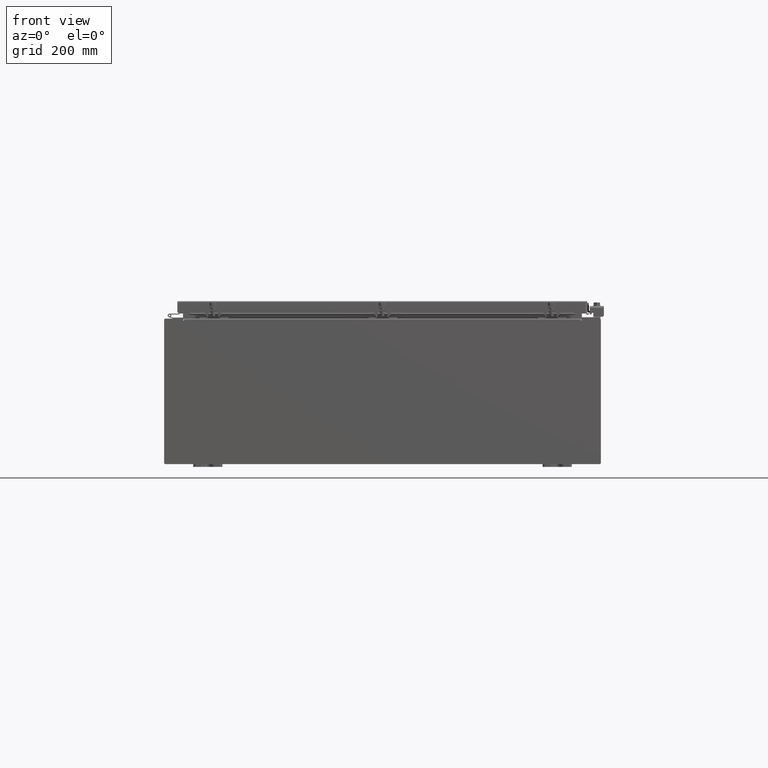
[diagram: clean part render]
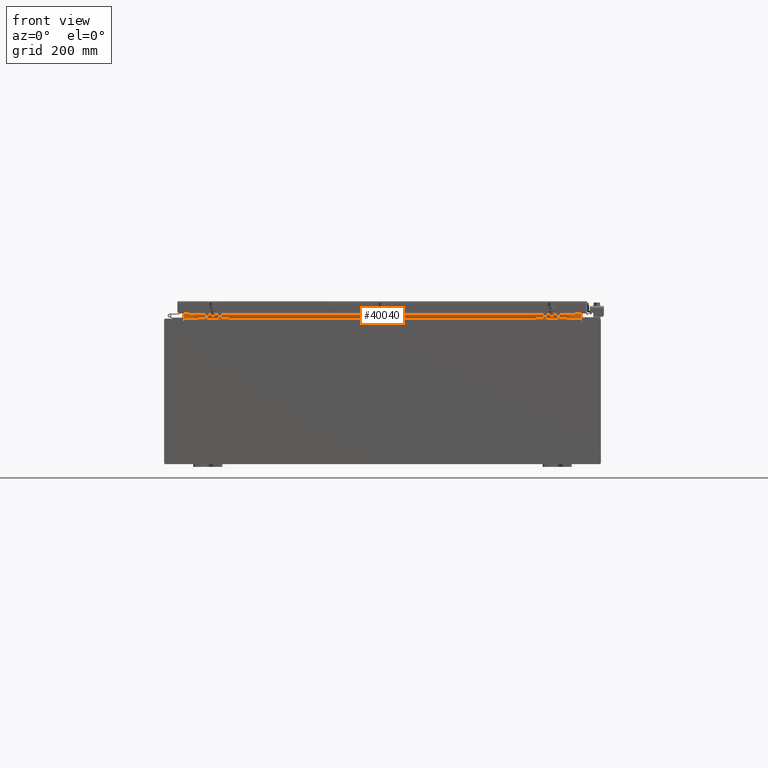
[diagram: same view with one face highlighted and labeled with its STEP entity id]
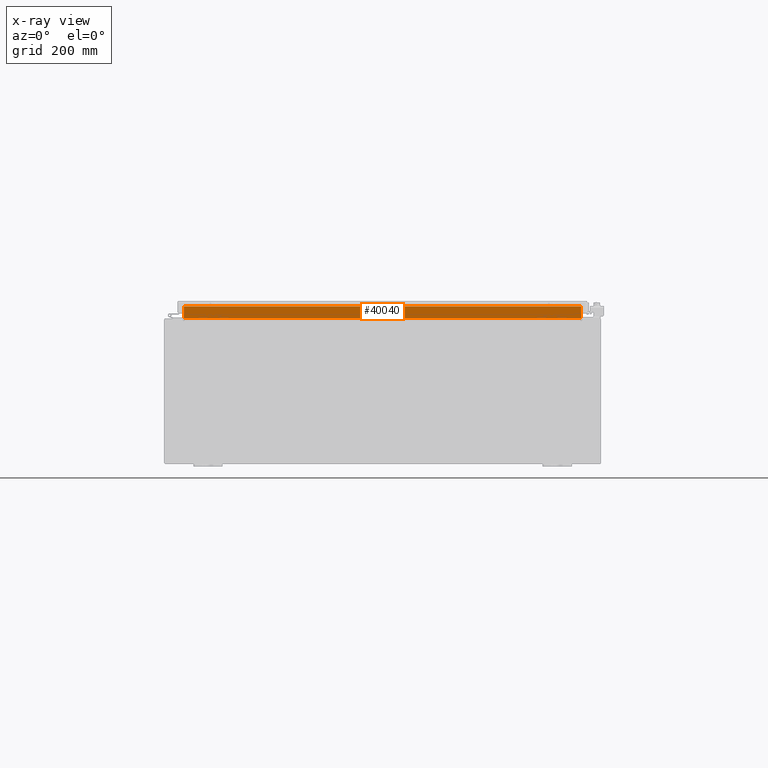
[diagram: x-ray of the same camera — body ghosted, the highlighted face saturated]
A machine part, front view. The second image highlights one B-rep face of the part: STEP entity #40040.
The next image is the same camera in x-ray: the body ghosted, the highlighted face saturated — about 0% of this face is hidden behind the body in this view.
In plain terms, the highlighted planar face has unit normal (0, -1, 0).
Its self-contained STEP definition (entity closure, byte-faithful):
#1965 = VERTEX_POINT ( 'NONE', #20703 ) ;
#2829 = CARTESIAN_POINT ( 'NONE',  ( 13.63719999999999800, -1.300299999999999800, 5.925300000000004500 ) ) ;
#3287 = ORIENTED_EDGE ( 'NONE', *, *, #35760, .F. ) ;
#5368 = VECTOR ( 'NONE', #37454, 39.37007874015748100 ) ;
#6408 = LINE ( 'NONE', #14135, #5368 ) ;
#6570 = VERTEX_POINT ( 'NONE', #10840 ) ;
#8160 = LINE ( 'NONE', #2829, #24928 ) ;
#8688 = VERTEX_POINT ( 'NONE', #23205 ) ;
#10459 = FACE_OUTER_BOUND ( 'NONE', #16092, .T. ) ;
#10840 = CARTESIAN_POINT ( 'NONE',  ( 13.63719999999999600, -1.300299999999999800, 5.013000000000002600 ) ) ;
#11070 = VERTEX_POINT ( 'NONE', #26277 ) ;
#11486 = ORIENTED_EDGE ( 'NONE', *, *, #28089, .F. ) ;
#14135 = CARTESIAN_POINT ( 'NONE',  ( 13.63719999999999800, -1.300299999999999800, 5.837600000000004600 ) ) ;
#14945 = DIRECTION ( 'NONE',  ( 0.0000000000000000000, 1.000000000000000000, 0.0000000000000000000 ) ) ;
#15861 = CARTESIAN_POINT ( 'NONE',  ( -13.63720000000000400, -1.300299999999999800, 5.000000000000004400 ) ) ;
#16092 = EDGE_LOOP ( 'NONE', ( #3287, #11486, #19785, #24489 ) ) ;
#19785 = ORIENTED_EDGE ( 'NONE', *, *, #32275, .F. ) ;
#20703 = CARTESIAN_POINT ( 'NONE',  ( 13.63719999999999800, -1.300299999999999800, 5.837600000000004600 ) ) ;
#21540 = AXIS2_PLACEMENT_3D ( 'NONE', #38152, #14945, #38281 ) ;
#22841 = DIRECTION ( 'NONE',  ( -0.0000000000000000000, -0.0000000000000000000, 1.000000000000000000 ) ) ;
#23205 = CARTESIAN_POINT ( 'NONE',  ( -13.63720000000000400, -1.300299999999999800, 5.837600000000004600 ) ) ;
#24489 = ORIENTED_EDGE ( 'NONE', *, *, #36325, .F. ) ;
#24928 = VECTOR ( 'NONE', #22841, 39.37007874015748100 ) ;
#25694 = LINE ( 'NONE', #38706, #33555 ) ;
#26277 = CARTESIAN_POINT ( 'NONE',  ( -13.63720000000000400, -1.300299999999999800, 5.013000000000002600 ) ) ;
#28089 = EDGE_CURVE ( 'NONE', #1965, #8688, #6408, .T. ) ;
#28099 = PLANE ( 'NONE',  #21540 ) ;
#28877 = VECTOR ( 'NONE', #42400, 39.37007874015748100 ) ;
#29950 = LINE ( 'NONE', #15861, #28877 ) ;
#32275 = EDGE_CURVE ( 'NONE', #6570, #1965, #8160, .T. ) ;
#33555 = VECTOR ( 'NONE', #38847, 39.37007874015748100 ) ;
#35760 = EDGE_CURVE ( 'NONE', #8688, #11070, #29950, .T. ) ;
#36325 = EDGE_CURVE ( 'NONE', #11070, #6570, #25694, .T. ) ;
#37454 = DIRECTION ( 'NONE',  ( -1.000000000000000000, -0.0000000000000000000, -0.0000000000000000000 ) ) ;
#38152 = CARTESIAN_POINT ( 'NONE',  ( 0.0000000000000000000, -1.300299999999999800, 0.0000000000000000000 ) ) ;
#38281 = DIRECTION ( 'NONE',  ( 0.0000000000000000000, -0.0000000000000000000, 1.000000000000000000 ) ) ;
#38706 = CARTESIAN_POINT ( 'NONE',  ( -13.63720000000000400, -1.300299999999999800, 5.013000000000003500 ) ) ;
#38847 = DIRECTION ( 'NONE',  ( 1.000000000000000000, 0.0000000000000000000, -4.006464660875052000E-017 ) ) ;
#40040 = ADVANCED_FACE ( 'NONE', ( #10459 ), #28099, .T. ) ;
#42400 = DIRECTION ( 'NONE',  ( -0.0000000000000000000, -0.0000000000000000000, -1.000000000000000000 ) ) ;